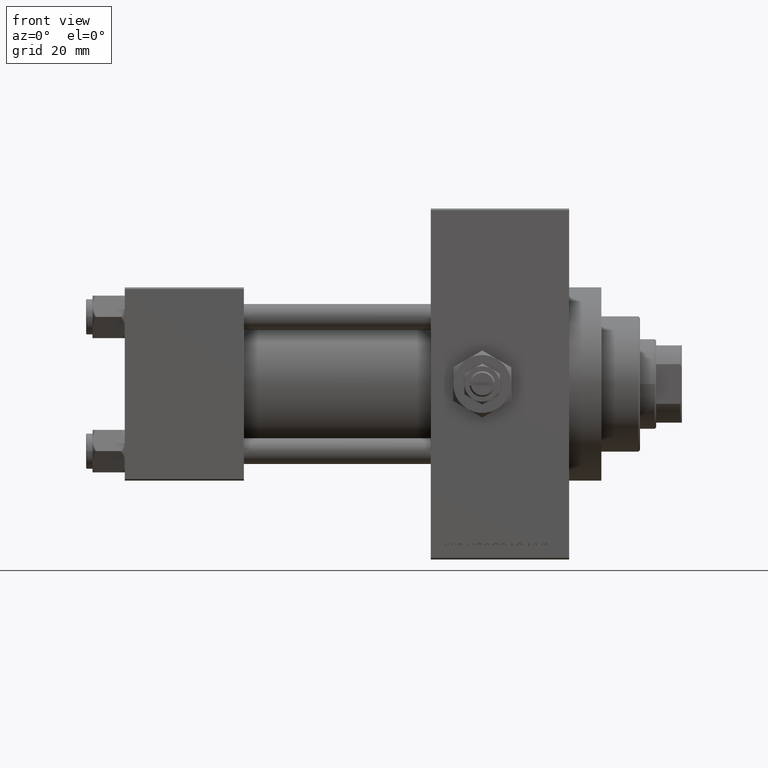
[diagram: clean part render]
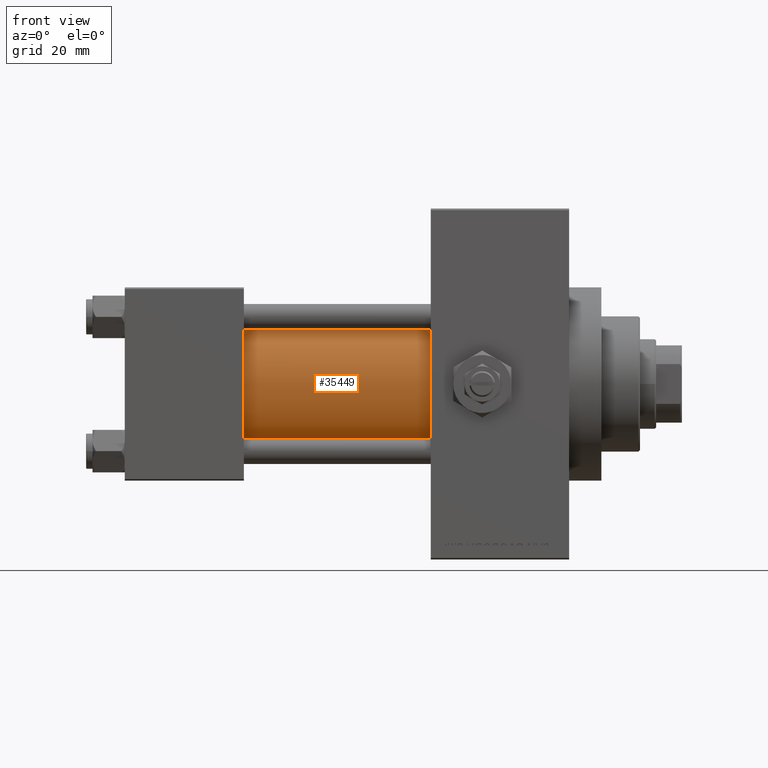
[diagram: same view with one face highlighted and labeled with its STEP entity id]
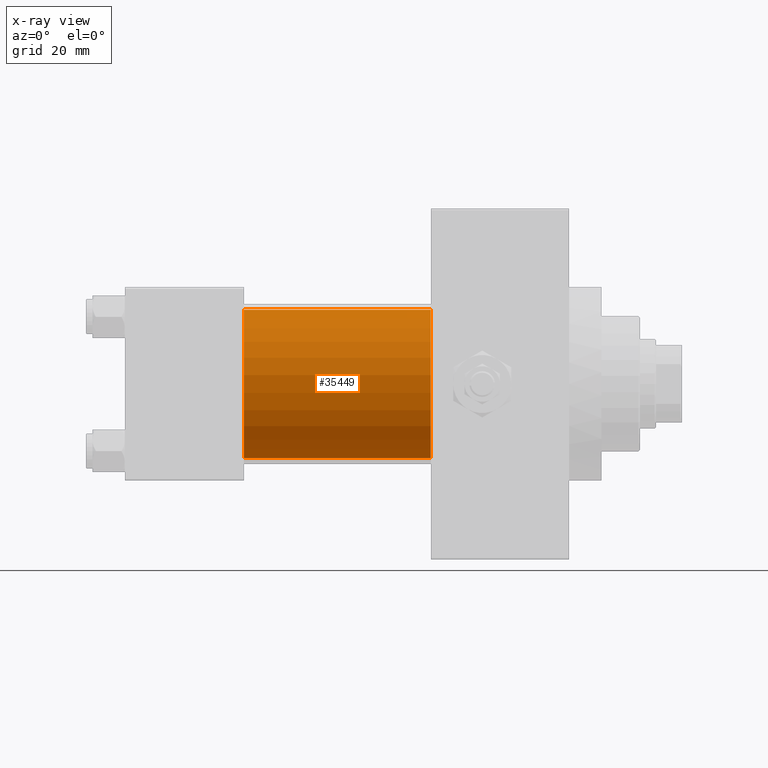
[diagram: x-ray of the same camera — body ghosted, the highlighted face saturated]
A machine part, front view. The second image highlights one B-rep face of the part: STEP entity #35449.
The next image is the same camera in x-ray: the body ghosted, the highlighted face saturated — about 0% of this face is hidden behind the body in this view.
In plain terms, the highlighted cylindrical surface (partial cylindrical patch) has radius 23 mm, axis along (-1, -0, -0).
Its self-contained STEP definition (entity closure, byte-faithful):
#728 = DIRECTION ( 'NONE',  ( -1.000000000000000000, -0.000000000000000000, -0.000000000000000000 ) ) ;
#1476 = AXIS2_PLACEMENT_3D ( 'NONE', #33502, #11809, #41863 ) ;
#2523 = EDGE_LOOP ( 'NONE', ( #29982, #43057, #37918, #17131 ) ) ;
#3931 = FACE_OUTER_BOUND ( 'NONE', #2523, .T. ) ;
#4900 = DIRECTION ( 'NONE',  ( 0.000000000000000000, 0.000000000000000000, 1.000000000000000000 ) ) ;
#7863 = CARTESIAN_POINT ( 'NONE',  ( 95.00000000000000000, -2.602085213965210642E-15, 0.000000000000000000 ) ) ;
#8273 = CARTESIAN_POINT ( 'NONE',  ( 95.00000000000000000, -2.602085213965210642E-15, 23.00000000000000000 ) ) ;
#10411 = VERTEX_POINT ( 'NONE', #31070 ) ;
#11809 = DIRECTION ( 'NONE',  ( 1.000000000000000000, -0.000000000000000000, 0.000000000000000000 ) ) ;
#14385 = EDGE_CURVE ( 'NONE', #38105, #40338, #27952, .T. ) ;
#15602 = VERTEX_POINT ( 'NONE', #36231 ) ;
#15891 = DIRECTION ( 'NONE',  ( 0.000000000000000000, 0.000000000000000000, -1.000000000000000000 ) ) ;
#17131 = ORIENTED_EDGE ( 'NONE', *, *, #39960, .T. ) ;
#17420 = DIRECTION ( 'NONE',  ( -1.000000000000000000, -0.000000000000000000, -0.000000000000000000 ) ) ;
#18060 = VECTOR ( 'NONE', #48253, 1000.000000000000000 ) ;
#18087 = VECTOR ( 'NONE', #17420, 1000.000000000000000 ) ;
#21847 = CARTESIAN_POINT ( 'NONE',  ( 95.00000000000000000, 2.146024240737012665E-16, -23.00000000000000000 ) ) ;
#22137 = CARTESIAN_POINT ( 'NONE',  ( 95.00000000000000000, -2.602085213965210642E-15, 23.00000000000000000 ) ) ;
#27419 = CIRCLE ( 'NONE', #1476, 23.00000000000000000 ) ;
#27952 = CIRCLE ( 'NONE', #30417, 23.00000000000000000 ) ;
#28518 = LINE ( 'NONE', #47943, #18087 ) ;
#29982 = ORIENTED_EDGE ( 'NONE', *, *, #46590, .F. ) ;
#30417 = AXIS2_PLACEMENT_3D ( 'NONE', #38320, #34624, #15891 ) ;
#31070 = CARTESIAN_POINT ( 'NONE',  ( 37.00000000000000000, -2.602085213965210642E-15, 23.00000000000000000 ) ) ;
#33502 = CARTESIAN_POINT ( 'NONE',  ( 37.00000000000000000, -2.602085213965210642E-15, 0.000000000000000000 ) ) ;
#34624 = DIRECTION ( 'NONE',  ( 1.000000000000000000, 0.000000000000000000, 0.000000000000000000 ) ) ;
#34974 = CYLINDRICAL_SURFACE ( 'NONE', #44589, 23.00000000000000000 ) ;
#35449 = ADVANCED_FACE ( 'NONE', ( #3931 ), #34974, .T. ) ;
#36231 = CARTESIAN_POINT ( 'NONE',  ( 37.00000000000000000, 2.146024240737012665E-16, -23.00000000000000000 ) ) ;
#37918 = ORIENTED_EDGE ( 'NONE', *, *, #41467, .T. ) ;
#38105 = VERTEX_POINT ( 'NONE', #8273 ) ;
#38320 = CARTESIAN_POINT ( 'NONE',  ( 95.00000000000000000, -2.602085213965210642E-15, 0.000000000000000000 ) ) ;
#39960 = EDGE_CURVE ( 'NONE', #10411, #15602, #27419, .T. ) ;
#40338 = VERTEX_POINT ( 'NONE', #21847 ) ;
#40874 = LINE ( 'NONE', #22137, #18060 ) ;
#41467 = EDGE_CURVE ( 'NONE', #38105, #10411, #40874, .T. ) ;
#41863 = DIRECTION ( 'NONE',  ( 0.000000000000000000, 0.000000000000000000, 1.000000000000000000 ) ) ;
#43057 = ORIENTED_EDGE ( 'NONE', *, *, #14385, .F. ) ;
#44589 = AXIS2_PLACEMENT_3D ( 'NONE', #7863, #728, #4900 ) ;
#46590 = EDGE_CURVE ( 'NONE', #40338, #15602, #28518, .T. ) ;
#47943 = CARTESIAN_POINT ( 'NONE',  ( 95.00000000000000000, 2.146024240737012665E-16, -23.00000000000000000 ) ) ;
#48253 = DIRECTION ( 'NONE',  ( -1.000000000000000000, -0.000000000000000000, -0.000000000000000000 ) ) ;